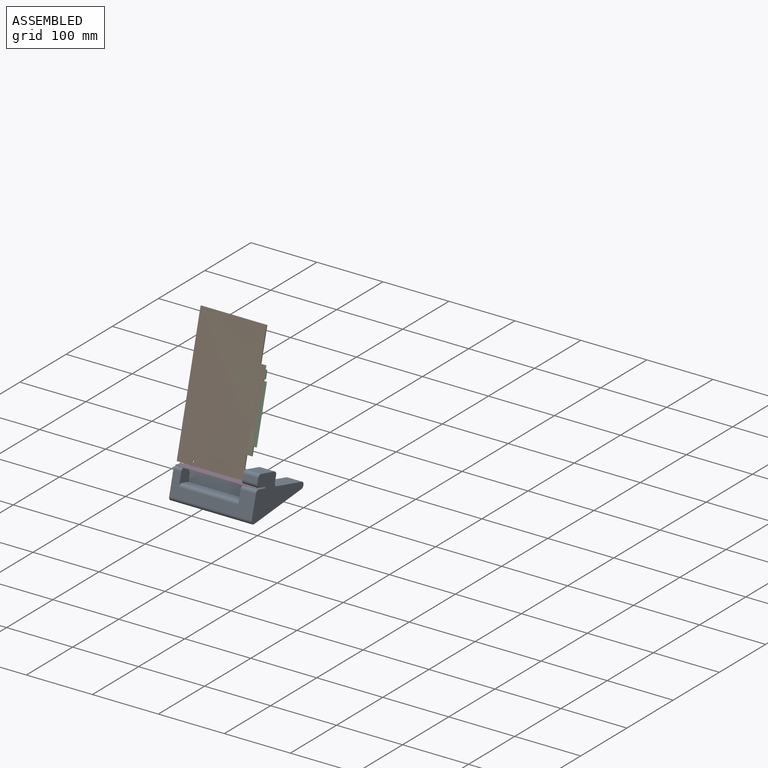
[diagram: assembled view]
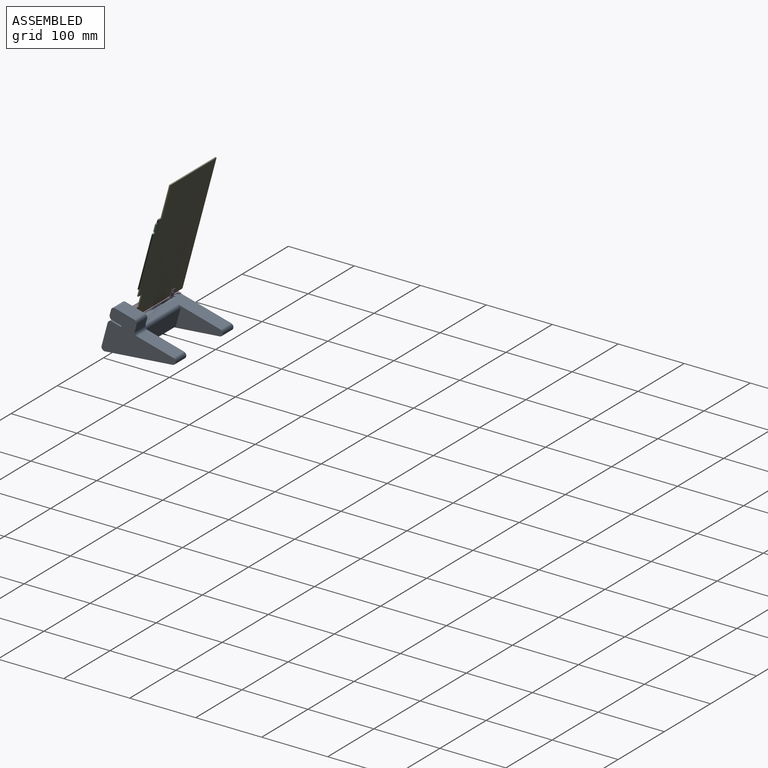
[diagram: assembled view, second angle]
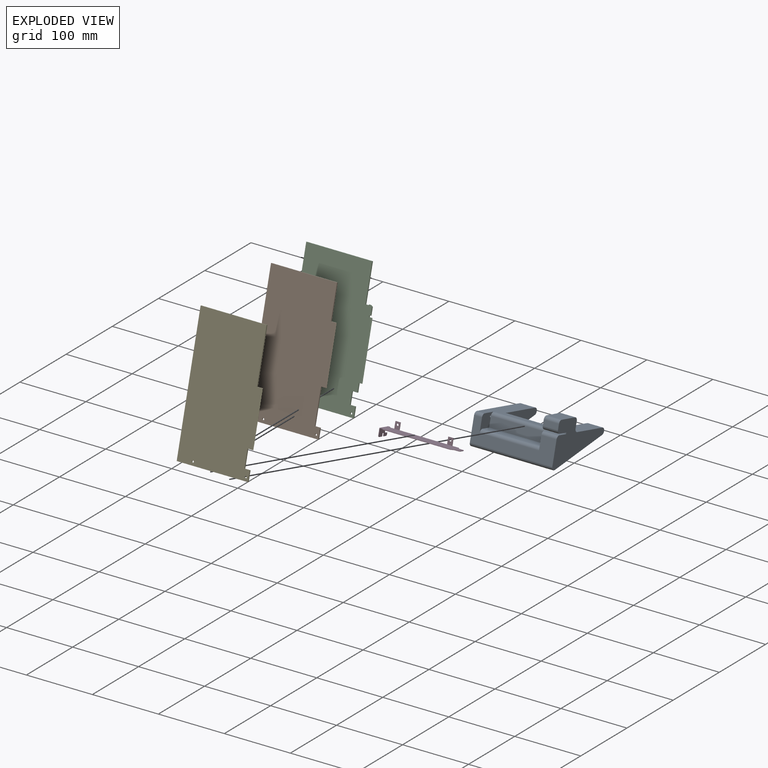
[diagram: exploded view]
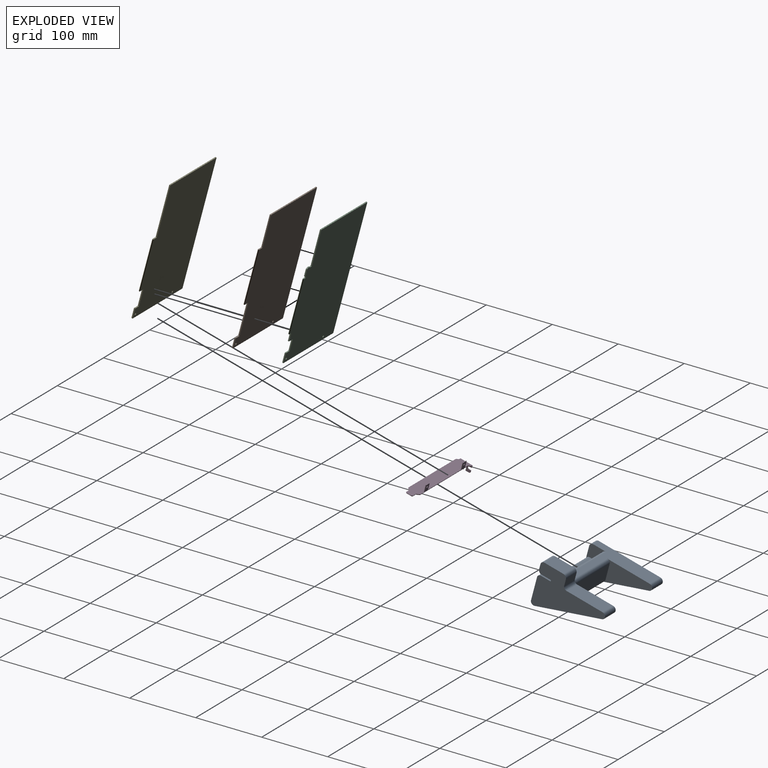
[diagram: exploded view, second angle]
ASSEMBLY  parts=5 mates=6
PART A: 33 faces, bbox 125x112.7x61.8 mm
  f0: plane 53.13x23mm, normal (0,0.34,0.94), area 1300.5mm2, adj f6,f13,f25,f30
  f1: plane 125x102.74mm, normal (0,0,-1), area 7248.1mm2, adj f6,f7,f13,f18,f20,f21,f29,f30
  f2: plane 32.04x24.23mm, normal (1,0,0), area 400.7mm2, adj f3,f4,f14,f15,f17,f22,f23,f24
  f3: plane 102x90.72mm, normal (0,0.34,0.94), area 2790.5mm2, adj f2,f7,f13,f18,f21,f22,f23,f32
  f4: plane 125x33.02mm, normal (0,-0.94,0.34), area 2592.3mm2, adj f2,f6,f7,f13,f22,f24,f29,f31
  f5: plane 23x14.1mm, normal (0,0.34,0.94), area 345mm2, adj f6,f8,f13,f31
  f6: plane 112.74x61.81mm, normal (1,0,0), area 3696.1mm2, adj f0,f1,f4,f5,f8,f9,f10,f11
  f7: plane 112.74x43.02mm, normal (-1,0,0), area 2939.8mm2, adj f1,f3,f4,f17,f21,f22,f29
  f8: plane 23x1.88mm, normal (0,-0.94,0.34), area 46mm2, adj f5,f6,f12,f13
  f9: plane 23x9.4mm, normal (0,0.94,-0.34), area 230mm2, adj f6,f13,f25,f26
  f10: plane 28.19x23mm, normal (0,0.34,0.94), area 690mm2, adj f6,f13,f26,f27
  f11: plane 23x7.52mm, normal (0,-0.94,0.34), area 184mm2, adj f6,f13,f27,f28
  f12: plane 23x14.1mm, normal (0,-0.34,-0.94), area 345mm2, adj f6,f8,f13,f28
  f13: plane 107.26x61.81mm, normal (-1,0,0), area 2526.1mm2, adj f0,f1,f3,f4,f5,f8,f9,f10
  f14: plane 90x14.1mm, normal (0,-0.94,0.34), area 1350mm2, adj f2,f13,f15,f16,f23
  f15: plane 90x14.1mm, normal (0,0.34,0.94), area 1350mm2, adj f2,f13,f14,f24
  f16: plane 2.65x1.67mm, normal (-1,0,0), area 2.4mm2, adj f14,f17,f23
  f17: cylinder r=1.5mm len=12mm, axis (-1,0,0), area 113.1mm2, adj f2,f7,f16
  f18: plane 75.81x32.46mm, normal (1,0,0), area 1371.5mm2, adj f1,f3,f19,f20,f21,f32
  f19: plane 79x22.76mm, normal (0,0.94,-0.34), area 1913.3mm2, adj f13,f18,f20,f32
  f20: cylinder r=5mm len=79mm, axis (1,0,0), area 482.6mm2, adj f1,f13,f18,f19
  f21: cylinder r=5mm len=23mm, axis (1,0,0), area 321.1mm2, adj f1,f3,f7,f18
  f22: cylinder r=5mm len=12mm, axis (-1,0,0), area 94.2mm2, adj f2,f3,f4,f7
  f23: cylinder r=5mm len=90mm, axis (1,0,0), area 706.9mm2, adj f2,f3,f13,f14,f16
  f24: cylinder r=5mm len=90mm, axis (-1,0,0), area 706.9mm2, adj f2,f4,f13,f15
  f25: cylinder r=5mm len=23mm, axis (1,0,0), area 180.6mm2, adj f0,f6,f9,f13
  f26: cylinder r=5mm len=23mm, axis (1,0,0), area 180.6mm2, adj f6,f9,f10,f13
  f27: cylinder r=5mm len=23mm, axis (1,0,0), area 180.6mm2, adj f6,f10,f11,f13
  f28: cylinder r=5mm len=23mm, axis (1,0,0), area 180.6mm2, adj f6,f11,f12,f13
  f29: cylinder r=5mm len=125mm, axis (1,0,0), area 1199.9mm2, adj f1,f4,f6,f7
  f30: cylinder r=5mm len=23mm, axis (1,0,0), area 321.1mm2, adj f0,f1,f6,f13
  f31: cylinder r=5mm len=23mm, axis (-1,0,0), area 180.6mm2, adj f4,f5,f6,f13
  f32: cylinder r=5mm len=79mm, axis (-1,0,0), area 620.5mm2, adj f3,f13,f18,f19
PART B: 16 faces, bbox 1.8x200x108 mm
  f0: plane 200x1.75mm, normal (0,0,1), area 350mm2, adj f1,f10,f12,f13
  f1: plane 108x1.75mm, normal (0,-1,0), area 189mm2, adj f0,f2,f12,f13
  f2: plane 15.15x1.75mm, normal (0,0,-1), area 26.5mm2, adj f1,f3,f12,f13
  f3: plane 8x1.75mm, normal (0,1,0), area 14mm2, adj f2,f4,f12,f13
  f4: plane 51x1.75mm, normal (0,0,-1), area 89.2mm2, adj f3,f5,f12,f13
  f5: plane 8x1.75mm, normal (0,-1,0), area 13.4mm2, adj f4,f6,f12,f13,f14,f15
  f6: plane 83.8x0.25mm, normal (0,0,-1), area 20.9mm2, adj f5,f7,f14,f15
  f7: plane 8x1.75mm, normal (0,1,0), area 13.4mm2, adj f6,f8,f12,f13,f14,f15
  f8: plane 50.05x1.75mm, normal (0,0,-1), area 87.6mm2, adj f7,f10,f12,f13
  f9: cylinder r=1.5mm len=3mm, axis (-1,0,0), area 16.5mm2, adj f12,f13
  f10: plane 100x1.75mm, normal (0,1,0), area 175mm2, adj f0,f8,f12,f13
  f11: cylinder r=1.5mm len=3mm, axis (-1,0,0), area 16.5mm2, adj f12,f13
  f12: plane 200x108mm, normal (1,0,0), area 20714.6mm2, adj f0,f1,f2,f3,f4,f5,f7,f8
  f13: plane 200x108mm, normal (-1,0,0), area 20714.6mm2, adj f0,f1,f2,f3,f4,f5,f7,f8
  f14: plane 83.8x0.75mm, normal (-0.71,0,-0.71), area 88.9mm2, adj f5,f6,f7,f13
  f15: plane 83.8x0.75mm, normal (0.71,0,-0.71), area 88.9mm2, adj f5,f6,f7,f12
PART C: 25 faces, bbox 1.8x200x112.5 mm
  f0: plane 4.8x1.75mm, normal (0,1,0), area 8.4mm2, adj f9,f13,f14,f22
  f1: plane 2.7x1.75mm, normal (0,0,-1), area 4.7mm2, adj f13,f14,f17,f18
  f2: plane 200x1.75mm, normal (0,0,1), area 350mm2, adj f3,f11,f13,f14
  f3: plane 108x1.75mm, normal (0,-1,0), area 189mm2, adj f2,f4,f13,f14
  f4: plane 15.15x1.75mm, normal (0,0,-1), area 26.5mm2, adj f3,f5,f13,f14
  f5: plane 8x1.75mm, normal (0,1,0), area 14mm2, adj f4,f6,f13,f14
  f6: plane 18x1.75mm, normal (0,0,-1), area 31.5mm2, adj f5,f7,f13,f14
  f7: plane 8x1.75mm, normal (0,-1,0), area 14mm2, adj f6,f8,f13,f14
  f8: plane 12.5x1.75mm, normal (0,0,-1), area 21.9mm2, adj f7,f13,f14,f15
  f9: plane 55.45x1.75mm, normal (0,0,-1), area 97mm2, adj f0,f11,f13,f14
  f10: cylinder r=1.5mm len=3mm, axis (-1,0,0), area 16.5mm2, adj f13,f14
  f11: plane 100x1.75mm, normal (0,1,0), area 175mm2, adj f2,f9,f13,f14
  f12: cylinder r=1.5mm len=3mm, axis (-1,0,0), area 16.5mm2, adj f13,f14
  f13: plane 200x111.75mm, normal (1,0,0), area 21341.4mm2, adj f0,f1,f2,f3,f4,f5,f6,f7
  f14: plane 200x111.75mm, normal (-1,0,0), area 21341.4mm2, adj f0,f1,f2,f3,f4,f5,f6,f7
  f15: plane 4.5x1.75mm, normal (0,-1,0), area 7.3mm2, adj f8,f13,f14,f16,f23,f24
  f16: plane 84.3x0.25mm, normal (0,0,-1), area 21.1mm2, adj f15,f17,f23,f24
  f17: plane 4.5x1.75mm, normal (0,1,0), area 7.3mm2, adj f1,f13,f14,f16,f23,f24
  f18: plane 2x1.75mm, normal (0,-1,0), area 3.5mm2, adj f1,f13,f14,f19
  f19: plane 11.4x1.75mm, normal (0,0,-1), area 20mm2, adj f13,f14,f18,f20
  f20: plane 2.7x1.75mm, normal (0,0.87,-0.49), area 5.4mm2, adj f13,f14,f19,f21
  f21: plane 2.5x1.75mm, normal (0,1,0), area 4.4mm2, adj f13,f14,f20,f22
  f22: plane 1.75x1mm, normal (0,0,1), area 1.8mm2, adj f0,f13,f14,f21
  f23: plane 84.3x0.75mm, normal (0.71,0,-0.71), area 89.4mm2, adj f13,f15,f16,f17
  f24: plane 84.3x0.75mm, normal (-0.71,0,-0.71), area 89.4mm2, adj f14,f15,f16,f17
PART D: 39 faces, bbox 21.5x22.3x120.9 mm
  f0: plane 119.85x21.5mm, normal (0,1,0), area 2126.2mm2, adj f2,f3,f4,f5,f6,f7,f8,f10
  f1: plane 120x21.5mm, normal (0,-1,0), area 2142.1mm2, adj f2,f3,f4,f5,f6,f7,f8,f10
  f2: plane 5.45x0.85mm, normal (-1,0,0), area 4.6mm2, adj f0,f1,f13,f26
  f3: plane 6.5x0.85mm, normal (0,0,-1), area 5.5mm2, adj f0,f1,f26,f27
  f4: plane 5.45x0.85mm, normal (1,0,0), area 4.6mm2, adj f0,f1,f5,f27
  f5: plane 4x4mm, normal (0.71,0,-0.71), area 4.8mm2, adj f0,f1,f4,f6
  f6: plane 102.7x0.85mm, normal (1,0,0), area 87.3mm2, adj f0,f1,f5,f7
  f7: plane 3x3mm, normal (0.71,0,0.71), area 3.6mm2, adj f0,f1,f6,f8
  f8: plane 10.2x3.7mm, normal (1,0,0), area 10.9mm2, adj f0,f1,f7,f9,f23,f24,f28
  f9: plane 18.5x11.2mm, normal (0,0,1), area 171.9mm2, adj f8,f10,f14,f15,f16,f17,f18,f19
  f10: plane 4x3.5mm, normal (-1,0,0), area 5.4mm2, adj f0,f1,f9,f11,f15,f23,f28
  f11: plane 3x3mm, normal (-0.71,0,-0.71), area 3.6mm2, adj f0,f1,f10,f12
  f12: plane 102.9x10.9mm, normal (-1,0,0), area 228.1mm2, adj f0,f1,f11,f13,f29,f30,f32,f33
  f13: plane 4x4mm, normal (-0.71,0,-0.71), area 4.8mm2, adj f0,f1,f2,f12
  f14: plane 5.95x0.85mm, normal (0,-1,0), area 5.1mm2, adj f9,f22,f23,f24
  f15: plane 3.5x0.85mm, normal (0,-1,0), area 3mm2, adj f9,f10,f16,f23
  f16: cylinder r=2mm len=4mm, axis (0,0,1), area 5.3mm2, adj f9,f15,f17,f23
  f17: plane 3.5x0.85mm, normal (0,1,0), area 3mm2, adj f9,f16,f18,f23
  f18: plane 2.2x0.85mm, normal (-1,0,0), area 1.9mm2, adj f9,f17,f23,f25
  f19: plane 5.45x0.85mm, normal (0,-1,0), area 4.6mm2, adj f9,f20,f23,f25
  f20: plane 4.3x0.85mm, normal (1,0,0), area 3.7mm2, adj f9,f19,f21,f23
  f21: plane 3.1x0.85mm, normal (0,-1,0), area 2.6mm2, adj f9,f20,f22,f23
  f22: plane 4.3x0.85mm, normal (-1,0,0), area 3.7mm2, adj f9,f14,f21,f23
  f23: plane 18.5x11.35mm, normal (0,0,-1), area 174.6mm2, adj f1,f8,f10,f14,f15,f16,f17,f18
  f24: cylinder r=2mm len=2mm, axis (0,0,-1), area 2.7mm2, adj f8,f9,f14,f23
  f25: cylinder r=2mm len=2mm, axis (0,0,1), area 2.7mm2, adj f9,f18,f19,f23
  f26: cylinder r=2mm len=2mm, axis (0,1,0), area 2.7mm2, adj f0,f1,f2,f3
  f27: cylinder r=2mm len=2mm, axis (0,1,0), area 2.7mm2, adj f0,f1,f3,f4
  f28: cylinder r=1mm len=18.5mm, axis (-1,0,0), area 29.1mm2, adj f0,f8,f9,f10
  f29: plane 10.05x0.85mm, normal (0,0,-1), area 8.5mm2, adj f0,f12,f31,f32
  f30: plane 10.05x0.85mm, normal (0,0,1), area 8.5mm2, adj f0,f12,f31,f32
  f31: plane 10.05x7.7mm, normal (1,0,0), area 70.3mm2, adj f0,f29,f30,f32,f33
  f32: plane 7.7x0.85mm, normal (0,1,0), area 6.5mm2, adj f12,f29,f30,f31
  f33: cylinder r=1.5mm len=3mm, axis (-1,0,0), area 8mm2, adj f12,f31
  f34: plane 10.05x7.7mm, normal (1,0,0), area 70.3mm2, adj f0,f35,f36,f37,f38
  f35: plane 10.05x0.85mm, normal (0,0,-1), area 8.5mm2, adj f0,f12,f34,f37
  f36: plane 10.05x0.85mm, normal (0,0,1), area 8.5mm2, adj f0,f12,f34,f37
  f37: plane 7.7x0.85mm, normal (0,1,0), area 6.5mm2, adj f12,f34,f35,f36
  f38: cylinder r=1.5mm len=3mm, axis (-1,0,0), area 8mm2, adj f12,f34
PART E: 16 faces, bbox 1.8x200x108 mm
  f0: plane 200x1.75mm, normal (0,0,1), area 350mm2, adj f1,f10,f12,f13
  f1: plane 108x1.75mm, normal (0,-1,0), area 189mm2, adj f0,f2,f12,f13
  f2: plane 15.15x1.75mm, normal (0,0,-1), area 26.5mm2, adj f1,f3,f12,f13
  f3: plane 8x1.75mm, normal (0,1,0), area 14mm2, adj f2,f4,f12,f13
  f4: plane 26x1.75mm, normal (0,0,-1), area 45.5mm2, adj f3,f5,f12,f13
  f5: plane 8x1.75mm, normal (0,-1,0), area 13.4mm2, adj f4,f6,f12,f13,f14,f15
  f6: plane 79.15x0.25mm, normal (0,0,-1), area 19.8mm2, adj f5,f7,f14,f15
  f7: plane 8x1.75mm, normal (0,1,0), area 13.4mm2, adj f6,f8,f12,f13,f14,f15
  f8: plane 79.7x1.75mm, normal (0,0,-1), area 139.5mm2, adj f7,f10,f12,f13
  f9: cylinder r=1.5mm len=3mm, axis (-1,0,0), area 16.5mm2, adj f12,f13
  f10: plane 100x1.75mm, normal (0,1,0), area 175mm2, adj f0,f8,f12,f13
  f11: cylinder r=1.5mm len=3mm, axis (-1,0,0), area 16.5mm2, adj f12,f13
  f12: plane 200x108mm, normal (1,0,0), area 20680.9mm2, adj f0,f1,f2,f3,f4,f5,f7,f8
  f13: plane 200x108mm, normal (-1,0,0), area 20680.9mm2, adj f0,f1,f2,f3,f4,f5,f7,f8
  f14: plane 79.15x0.75mm, normal (-0.71,0,-0.71), area 84mm2, adj f5,f6,f7,f13
  f15: plane 79.15x0.75mm, normal (0.71,0,-0.71), area 84mm2, adj f5,f6,f7,f12
PLACE A rot(axis=(1,0,0),5deg) t=(-527.52,-275.06,370.67)mm
PLACE B rot(axis=(0.52,-0.68,-0.52),111.8deg) t=(-407.52,-273.43,412.52)mm
PLACE C rot(axis=(0.52,-0.68,-0.52),111.8deg) t=(-407.52,-273.43,412.52)mm
PLACE D rot(axis=(0.52,-0.68,-0.52),111.8deg) t=(-407.52,-273.43,412.52)mm
PLACE E rot(axis=(0.52,-0.68,-0.52),111.8deg) t=(-407.52,-273.43,412.52)mm
MATE fastened C.f12 <-> D.f33  axis (0,0.97,-0.26) through (-432.02,-263.72,416.29)mm
MATE planar D.f12 <-> A.f8  axis (0,0.97,-0.26) through (-428.17,-264.49,410.12)mm
MATE fastened B.f11 <-> E.f11  axis (0,-0.97,0.26) through (-432.02,-265.41,416.74)mm
MATE planar D.f23 <-> A.f7  axis (1,0,0) through (-527.52,-272.92,405.9)mm
MATE planar D.f1 <-> A.f5  axis (0,-0.26,-0.97) through (-469.5,-273.54,411.67)mm
MATE fastened E.f11 <-> C.f12  axis (0,-0.97,0.26) through (-432.02,-265.41,416.74)mm
